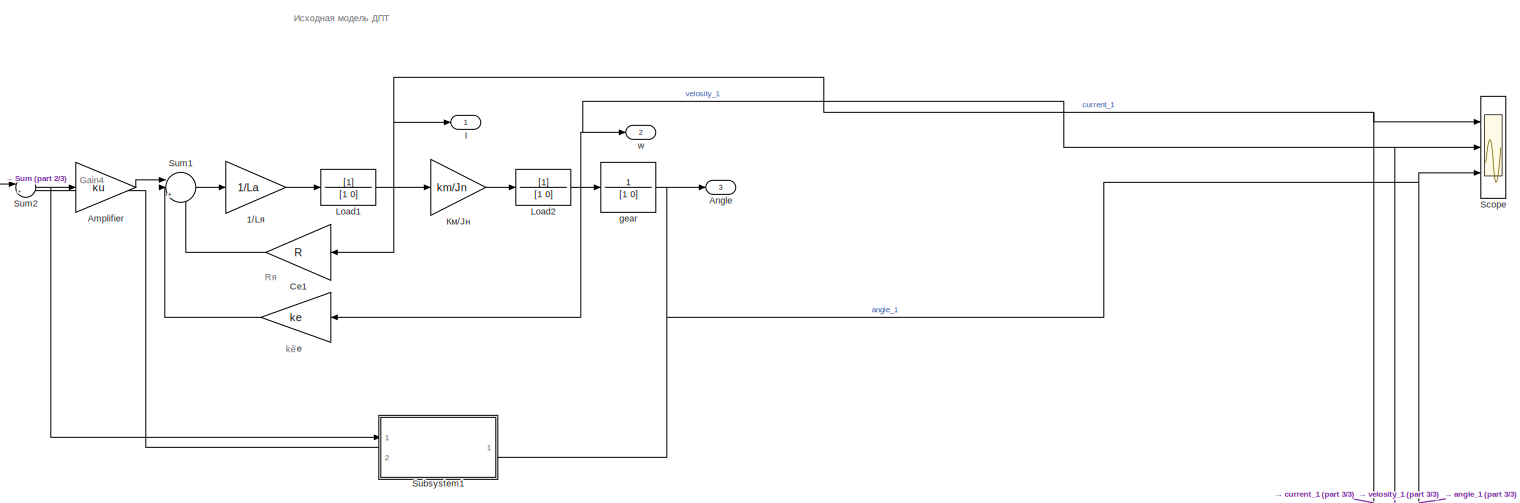
[diagram: root canvas - part 1/3, full width, top band]
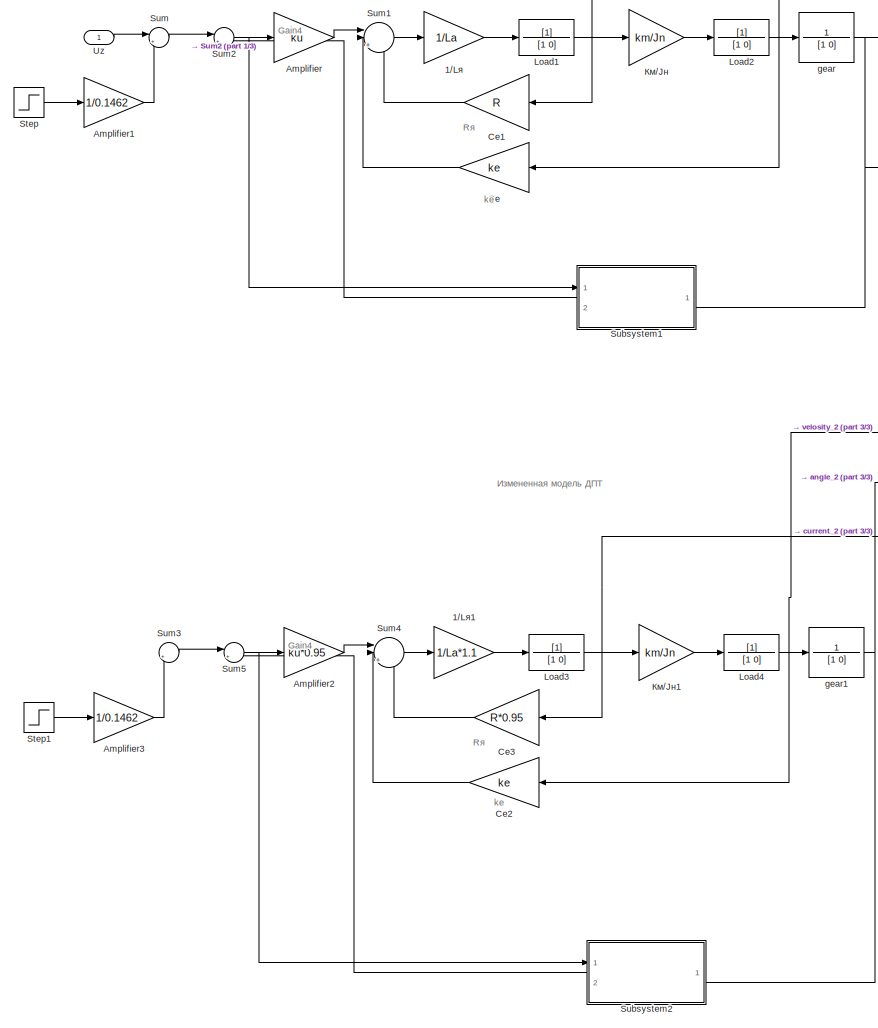
[diagram: root canvas - part 2/3, left side, full height]
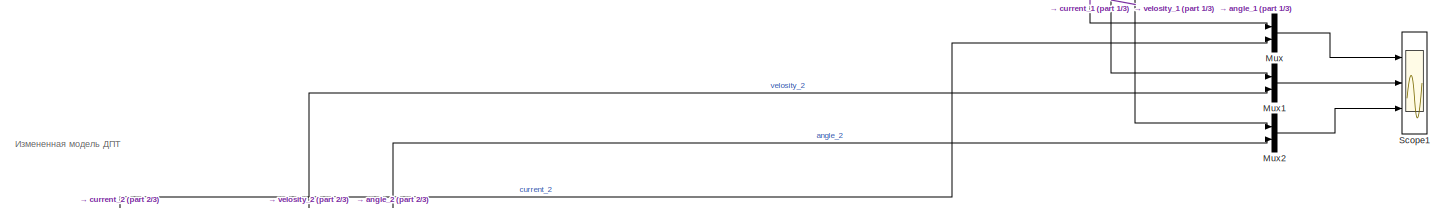
[diagram: root canvas - part 3/3, full width, middle band]
MODEL slx_f2eabdd3d9ce
KIND model
CONFIG AbsTol = auto
CONFIG EnableMultiTasking = off
CONFIG FixedStep = auto
CONFIG MaxStep = auto
CONFIG MinStep = auto
CONFIG RelTol = 1e-3
CONFIG SampleTimeConstraint = Unconstrained
CONFIG SolverName = VariableStepAuto
CONFIG StartTime = 0.0
CONFIG StopTime = 0.2
BLOCK [Gain] 1//Lя
  Gain = 1/La
BLOCK [Gain] 1//Lя1
  Gain = 1/La*1.1
BLOCK [Gain] Amplifier
  Gain = ku
BLOCK [Gain] Amplifier1
  Gain = 1/0.1462
BLOCK [Gain] Amplifier2
  Gain = ku*0.95
BLOCK [Gain] Amplifier3
  Gain = 1/0.1462
BLOCK [Outport] Angle
  Port = 3
BLOCK [Gain] Ce
  Gain = ke
BLOCK [Gain] Ce1
  Gain = R
BLOCK [Gain] Ce2
  Gain = ke
BLOCK [Gain] Ce3
  Gain = R*0.95
BLOCK [Outport] I
BLOCK [TransferFcn] Load1
  Denominator = [1 0]
BLOCK [TransferFcn] Load2
  Denominator = [1 0]
BLOCK [TransferFcn] Load3
  Denominator = [1 0]
BLOCK [TransferFcn] Load4
  Denominator = [1 0]
BLOCK [Mux] Mux
  DisplayOption = bar
  Inputs = 2
  Ports = [2, 1]
BLOCK [Mux] Mux1
  DisplayOption = bar
  Inputs = 2
  Ports = [2, 1]
BLOCK [Mux] Mux2
  DisplayOption = bar
  Inputs = 2
  Ports = [2, 1]
BLOCK [Scope] Scope
  Floating = off
  NumInputPorts = 3
  Ports = [3]
  ScopeSpecificationString = Simulink.scopes.TimeScopeBlockCfg('CurrentConfiguration', extmgr.ConfigurationSet(extmgr.Configuration('Core','General UI',true,'FigureColor',[1 1 1]),extmgr.Configuration('Core','Source UI',true),extmgr.Configuration('Sources','WiredSimulink',true),extmgr.Configuration('Visuals','Time Domain',true,'SerializedDisplays',{struct('MinYLimReal','-4.84733','MaxYLimReal','7.50348','YLabelReal','','MinYL...<+3578ch>
BLOCK [Scope] Scope1
  Floating = off
  NumInputPorts = 3
  Ports = [3]
  ScopeSpecificationString = Simulink.scopes.TimeScopeBlockCfg('CurrentConfiguration', extmgr.ConfigurationSet(extmgr.Configuration('Core','General UI',true,'FigureColor',[1 1 1]),extmgr.Configuration('Core','Source UI',true),extmgr.Configuration('Sources','WiredSimulink',true,'DataLoggingVariableName','ScopeData1'),extmgr.Configuration('Visuals','Time Domain',true,'SerializedDisplays',{struct('MinYLimReal','-4.84733','MaxYLi...<+3654ch>
BLOCK [Step] Step
  SampleTime = 0
  Time = 0
BLOCK [Step] Step1
  SampleTime = 0
  Time = 0
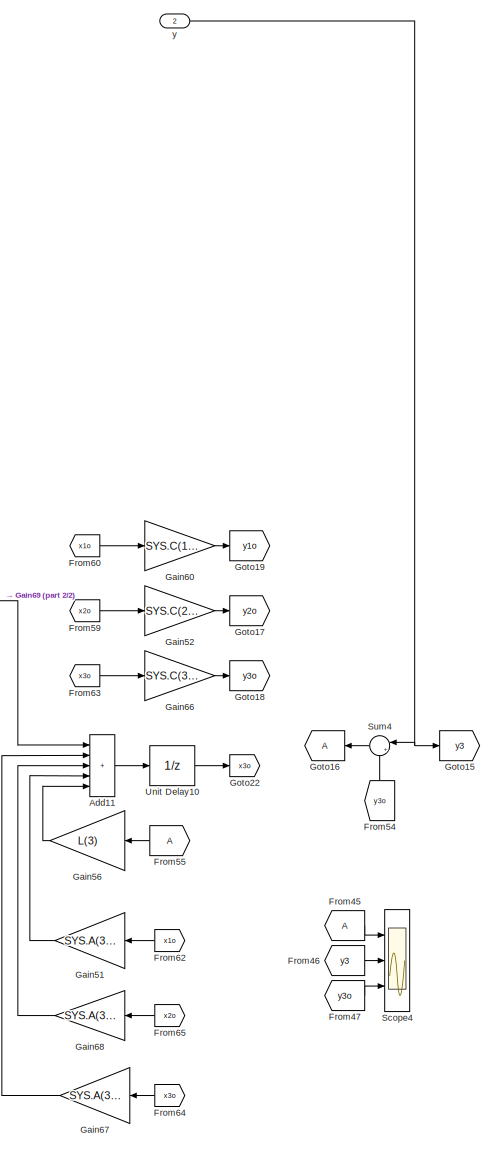
[diagram: Subsystem1 - part 1/2, right side, full height]
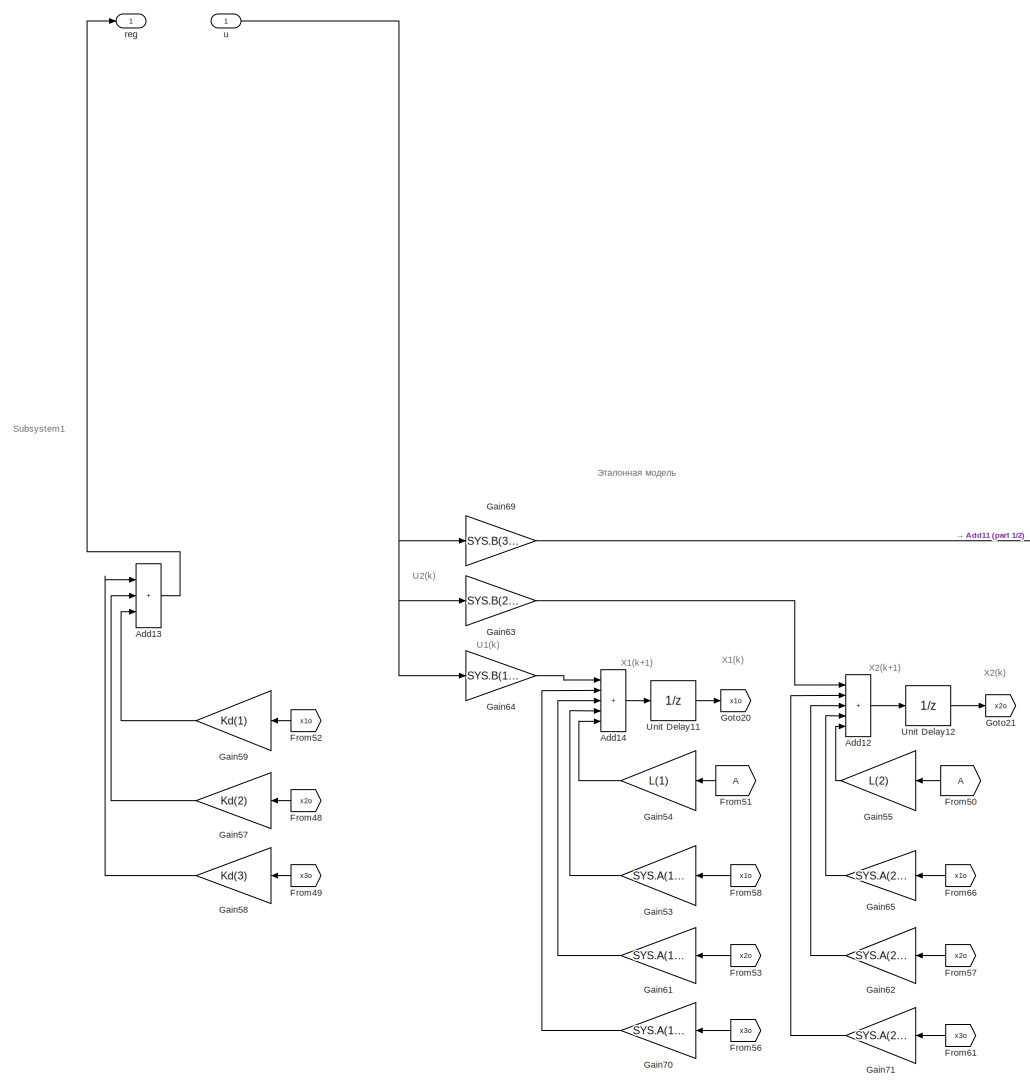
[diagram: Subsystem1 - part 2/2, center side, full height]
BLOCK [SubSystem] Subsystem1
  PortSchema = {"entries":[{"content":{"sides":[{"content":{"connectorIds":["In1","Out1"]},"type":"ConnectorPlacement.EquallySpacedRectSide","uuid":"1ae5a343-437d-4cb9-9822-e2db9fa7010c"},{"content":{"connectorIds":["In2"],"side":"RIGHT"},"type":"ConnectorPlacement.EquallySpacedRectSide","uuid":"a13fd255-885b-49a4-bdfe-42517e7d2bb6"},{"content":{"connectorIds":[],"side":"TOP"},"type":"ConnectorPlacement.EquallyS...<+246ch>
  Ports = [2, 1]
  RequestExecContextInheritance = off
BLOCK [Sum] Subsystem1/Add11
  IconShape = rectangular
  Inputs = +++++
  Ports = [5, 1]
BLOCK [Sum] Subsystem1/Add12
  IconShape = rectangular
  Inputs = +++++
  Ports = [5, 1]
BLOCK [Sum] Subsystem1/Add13
  IconShape = rectangular
  Inputs = +++
  Ports = [3, 1]
BLOCK [Sum] Subsystem1/Add14
  IconShape = rectangular
  Inputs = +++++
  Ports = [5, 1]
BLOCK [From] Subsystem1/From45
  NameLocation = top
BLOCK [From] Subsystem1/From46
  GotoTag = y3
BLOCK [From] Subsystem1/From47
  GotoTag = y3o
BLOCK [From] Subsystem1/From48
  GotoTag = x2o
  NameLocation = top
BLOCK [From] Subsystem1/From49
  GotoTag = x3o
  NameLocation = top
BLOCK [From] Subsystem1/From50
BLOCK [From] Subsystem1/From51
BLOCK [From] Subsystem1/From52
  GotoTag = x1o
  NameLocation = top
BLOCK [From] Subsystem1/From53
  GotoTag = x2o
  NameLocation = top
BLOCK [From] Subsystem1/From54
  GotoTag = y3o
  NameLocation = right
BLOCK [From] Subsystem1/From55
BLOCK [From] Subsystem1/From56
  GotoTag = x3o
  NameLocation = top
BLOCK [From] Subsystem1/From57
  GotoTag = x2o
  NameLocation = top
BLOCK [From] Subsystem1/From58
  GotoTag = x1o
  NameLocation = top
BLOCK [From] Subsystem1/From59
  GotoTag = x2o
BLOCK [From] Subsystem1/From60
  GotoTag = x1o
BLOCK [From] Subsystem1/From61
  GotoTag = x3o
  NameLocation = top
BLOCK [From] Subsystem1/From62
  GotoTag = x1o
  NameLocation = top
BLOCK [From] Subsystem1/From63
  GotoTag = x3o
BLOCK [From] Subsystem1/From64
  GotoTag = x3o
  NameLocation = top
BLOCK [From] Subsystem1/From65
  GotoTag = x2o
  NameLocation = top
BLOCK [From] Subsystem1/From66
  GotoTag = x1o
  NameLocation = top
BLOCK [Gain] Subsystem1/Gain51
  Gain = SYS.A(3,1)
BLOCK [Gain] Subsystem1/Gain52
  Gain = SYS.C(2,2)
BLOCK [Gain] Subsystem1/Gain53
  Gain = SYS.A(1,1)
BLOCK [Gain] Subsystem1/Gain54
  Gain = L(1)
BLOCK [Gain] Subsystem1/Gain55
  Gain = L(2)
BLOCK [Gain] Subsystem1/Gain56
  Gain = L(3)
BLOCK [Gain] Subsystem1/Gain57
  Gain = Kd(2)
BLOCK [Gain] Subsystem1/Gain58
  Gain = Kd(3)
BLOCK [Gain] Subsystem1/Gain59
  Gain = Kd(1)
BLOCK [Gain] Subsystem1/Gain60
  Gain = SYS.C(1,1)
BLOCK [Gain] Subsystem1/Gain61
  Gain = SYS.A(1,2)
BLOCK [Gain] Subsystem1/Gain62
  Gain = SYS.A(2,2)
BLOCK [Gain] Subsystem1/Gain63
  Gain = SYS.B(2,1)
BLOCK [Gain] Subsystem1/Gain64
  Gain = SYS.B(1,1)
BLOCK [Gain] Subsystem1/Gain65
  Gain = SYS.A(2,1)
  NameLocation = top
BLOCK [Gain] Subsystem1/Gain66
  Gain = SYS.C(3,3)
BLOCK [Gain] Subsystem1/Gain67
  Gain = SYS.A(3,3)
BLOCK [Gain] Subsystem1/Gain68
  Gain = SYS.A(3,2)
  NameLocation = top
BLOCK [Gain] Subsystem1/Gain69
  Gain = SYS.B(3,1)
BLOCK [Gain] Subsystem1/Gain70
  Gain = SYS.A(1,3)
BLOCK [Gain] Subsystem1/Gain71
  Gain = SYS.A(2,3)
BLOCK [Goto] Subsystem1/Goto15
  Commented = on
  GotoTag = y3
BLOCK [Goto] Subsystem1/Goto16
  NameLocation = top
BLOCK [Goto] Subsystem1/Goto17
  GotoTag = y2o
BLOCK [Goto] Subsystem1/Goto18
  GotoTag = y3o
BLOCK [Goto] Subsystem1/Goto19
  GotoTag = y1o
BLOCK [Goto] Subsystem1/Goto20
  GotoTag = x1o
BLOCK [Goto] Subsystem1/Goto21
  GotoTag = x2o
BLOCK [Goto] Subsystem1/Goto22
  GotoTag = x3o
BLOCK [Scope] Subsystem1/Scope4
  Floating = off
  NumInputPorts = 3
  Ports = [3]
  ScopeSpecificationString = Simulink.scopes.TimeScopeBlockCfg('CurrentConfiguration', extmgr.ConfigurationSet(extmgr.Configuration('Core','General UI',true,'FigureColor',[1 1 1]),extmgr.Configuration('Core','Source UI',true),extmgr.Configuration('Sources','WiredSimulink',true,'DataLoggingVariableName','ScopeData1'),extmgr.Configuration('Visuals','Time Domain',true,'SerializedDisplays',{struct('MinYLimReal','-1.00000','MaxYLi...<+3650ch>
BLOCK [Sum] Subsystem1/Sum4
  Inputs = |+-
  NameLocation = top
  Ports = [2, 1]
BLOCK [UnitDelay] Subsystem1/Unit Delay10
  HasFrameUpgradeWarning = on
  SampleTime = Ts
BLOCK [UnitDelay] Subsystem1/Unit Delay11
  HasFrameUpgradeWarning = on
  SampleTime = Ts
BLOCK [UnitDelay] Subsystem1/Unit Delay12
  HasFrameUpgradeWarning = on
  SampleTime = Ts
BLOCK [Outport] Subsystem1/reg
BLOCK [Inport] Subsystem1/u
BLOCK [Inport] Subsystem1/y
  Port = 2
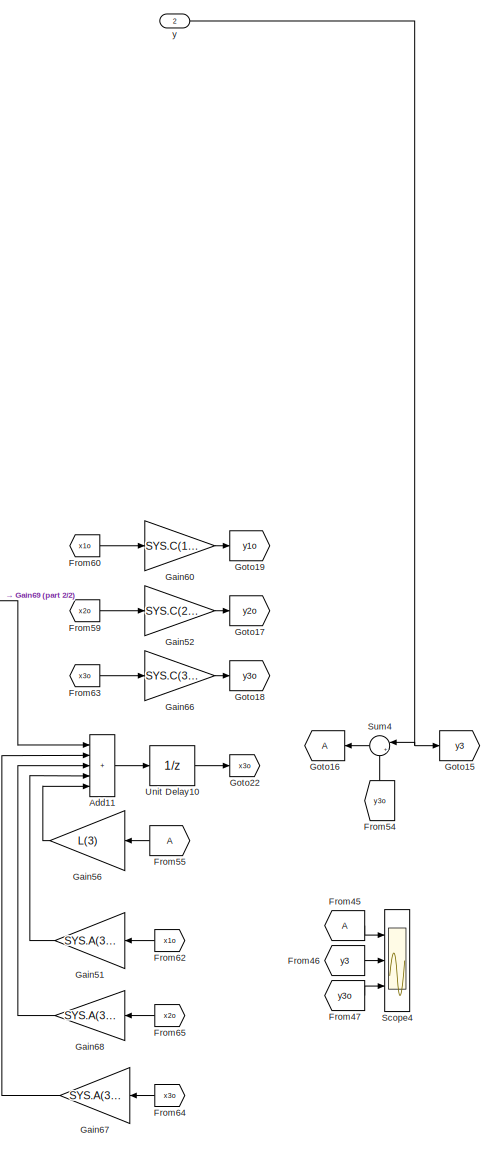
[diagram: Subsystem2 - part 1/2, right side, full height]
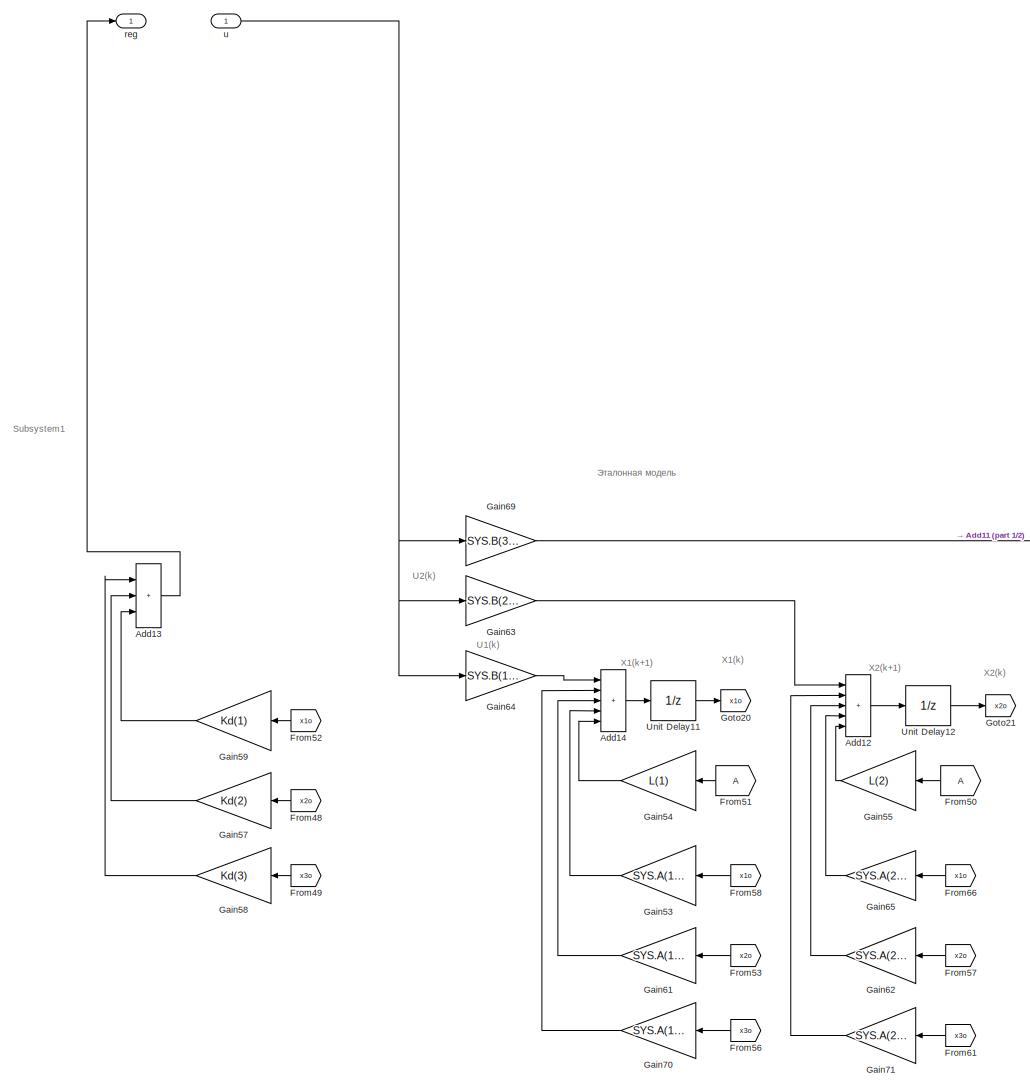
[diagram: Subsystem2 - part 2/2, center side, full height]
BLOCK [SubSystem] Subsystem2
  PortSchema = {"entries":[{"content":{"sides":[{"content":{"connectorIds":["In1","Out1"]},"type":"ConnectorPlacement.EquallySpacedRectSide","uuid":"1ae5a343-437d-4cb9-9822-e2db9fa7010c"},{"content":{"connectorIds":["In2"],"side":"RIGHT"},"type":"ConnectorPlacement.EquallySpacedRectSide","uuid":"a13fd255-885b-49a4-bdfe-42517e7d2bb6"},{"content":{"connectorIds":[],"side":"TOP"},"type":"ConnectorPlacement.EquallyS...<+246ch>
  Ports = [2, 1]
  RequestExecContextInheritance = off
BLOCK [Sum] Subsystem2/Add11
  IconShape = rectangular
  Inputs = +++++
  Ports = [5, 1]
BLOCK [Sum] Subsystem2/Add12
  IconShape = rectangular
  Inputs = +++++
  Ports = [5, 1]
BLOCK [Sum] Subsystem2/Add13
  IconShape = rectangular
  Inputs = +++
  Ports = [3, 1]
BLOCK [Sum] Subsystem2/Add14
  IconShape = rectangular
  Inputs = +++++
  Ports = [5, 1]
BLOCK [From] Subsystem2/From45
  NameLocation = top
BLOCK [From] Subsystem2/From46
  GotoTag = y3
BLOCK [From] Subsystem2/From47
  GotoTag = y3o
BLOCK [From] Subsystem2/From48
  GotoTag = x2o
  NameLocation = top
BLOCK [From] Subsystem2/From49
  GotoTag = x3o
  NameLocation = top
BLOCK [From] Subsystem2/From50
BLOCK [From] Subsystem2/From51
BLOCK [From] Subsystem2/From52
  GotoTag = x1o
  NameLocation = top
BLOCK [From] Subsystem2/From53
  GotoTag = x2o
  NameLocation = top
BLOCK [From] Subsystem2/From54
  GotoTag = y3o
  NameLocation = right
BLOCK [From] Subsystem2/From55
BLOCK [From] Subsystem2/From56
  GotoTag = x3o
  NameLocation = top
BLOCK [From] Subsystem2/From57
  GotoTag = x2o
  NameLocation = top
BLOCK [From] Subsystem2/From58
  GotoTag = x1o
  NameLocation = top
BLOCK [From] Subsystem2/From59
  GotoTag = x2o
BLOCK [From] Subsystem2/From60
  GotoTag = x1o
BLOCK [From] Subsystem2/From61
  GotoTag = x3o
  NameLocation = top
BLOCK [From] Subsystem2/From62
  GotoTag = x1o
  NameLocation = top
BLOCK [From] Subsystem2/From63
  GotoTag = x3o
BLOCK [From] Subsystem2/From64
  GotoTag = x3o
  NameLocation = top
BLOCK [From] Subsystem2/From65
  GotoTag = x2o
  NameLocation = top
BLOCK [From] Subsystem2/From66
  GotoTag = x1o
  NameLocation = top
BLOCK [Gain] Subsystem2/Gain51
  Gain = SYS.A(3,1)
BLOCK [Gain] Subsystem2/Gain52
  Gain = SYS.C(2,2)
BLOCK [Gain] Subsystem2/Gain53
  Gain = SYS.A(1,1)
BLOCK [Gain] Subsystem2/Gain54
  Gain = L(1)
BLOCK [Gain] Subsystem2/Gain55
  Gain = L(2)
BLOCK [Gain] Subsystem2/Gain56
  Gain = L(3)
BLOCK [Gain] Subsystem2/Gain57
  Gain = Kd(2)
BLOCK [Gain] Subsystem2/Gain58
  Gain = Kd(3)
BLOCK [Gain] Subsystem2/Gain59
  Gain = Kd(1)
BLOCK [Gain] Subsystem2/Gain60
  Gain = SYS.C(1,1)
BLOCK [Gain] Subsystem2/Gain61
  Gain = SYS.A(1,2)
BLOCK [Gain] Subsystem2/Gain62
  Gain = SYS.A(2,2)
BLOCK [Gain] Subsystem2/Gain63
  Gain = SYS.B(2,1)
BLOCK [Gain] Subsystem2/Gain64
  Gain = SYS.B(1,1)
BLOCK [Gain] Subsystem2/Gain65
  Gain = SYS.A(2,1)
  NameLocation = top
BLOCK [Gain] Subsystem2/Gain66
  Gain = SYS.C(3,3)
BLOCK [Gain] Subsystem2/Gain67
  Gain = SYS.A(3,3)
BLOCK [Gain] Subsystem2/Gain68
  Gain = SYS.A(3,2)
  NameLocation = top
BLOCK [Gain] Subsystem2/Gain69
  Gain = SYS.B(3,1)
BLOCK [Gain] Subsystem2/Gain70
  Gain = SYS.A(1,3)
BLOCK [Gain] Subsystem2/Gain71
  Gain = SYS.A(2,3)
BLOCK [Goto] Subsystem2/Goto15
  Commented = on
  GotoTag = y3
BLOCK [Goto] Subsystem2/Goto16
  NameLocation = top
BLOCK [Goto] Subsystem2/Goto17
  GotoTag = y2o
BLOCK [Goto] Subsystem2/Goto18
  GotoTag = y3o
BLOCK [Goto] Subsystem2/Goto19
  GotoTag = y1o
BLOCK [Goto] Subsystem2/Goto20
  GotoTag = x1o
BLOCK [Goto] Subsystem2/Goto21
  GotoTag = x2o
BLOCK [Goto] Subsystem2/Goto22
  GotoTag = x3o
BLOCK [Scope] Subsystem2/Scope4
  Floating = off
  NumInputPorts = 3
  Ports = [3]
  ScopeSpecificationString = Simulink.scopes.TimeScopeBlockCfg('CurrentConfiguration', extmgr.ConfigurationSet(extmgr.Configuration('Core','General UI',true,'FigureColor',[1 1 1]),extmgr.Configuration('Core','Source UI',true),extmgr.Configuration('Sources','WiredSimulink',true,'DataLoggingVariableName','ScopeData1'),extmgr.Configuration('Visuals','Time Domain',true,'SerializedDisplays',{struct('MinYLimReal','-1.00000','MaxYLi...<+3650ch>
BLOCK [Sum] Subsystem2/Sum4
  Inputs = |+-
  NameLocation = top
  Ports = [2, 1]
BLOCK [UnitDelay] Subsystem2/Unit Delay10
  HasFrameUpgradeWarning = on
  SampleTime = Ts
BLOCK [UnitDelay] Subsystem2/Unit Delay11
  HasFrameUpgradeWarning = on
  SampleTime = Ts
BLOCK [UnitDelay] Subsystem2/Unit Delay12
  HasFrameUpgradeWarning = on
  SampleTime = Ts
BLOCK [Outport] Subsystem2/reg
BLOCK [Inport] Subsystem2/u
BLOCK [Inport] Subsystem2/y
  Port = 2
BLOCK [Sum] Sum
  Inputs = |++
  Ports = [2, 1]
BLOCK [Sum] Sum1
  Inputs = ||+--
  Ports = [3, 1]
BLOCK [Sum] Sum2
  Inputs = |+-
  Ports = [2, 1]
BLOCK [Sum] Sum3
  Inputs = |++
  Ports = [2, 1]
BLOCK [Sum] Sum4
  Inputs = ||+--
  Ports = [3, 1]
BLOCK [Sum] Sum5
  Inputs = |+-
  Ports = [2, 1]
BLOCK [Inport] Uz
BLOCK [TransferFcn] gear
  Denominator = [1 0]
  Numerator = 1
BLOCK [TransferFcn] gear1
  Denominator = [1 0]
  Numerator = 1
BLOCK [Outport] w
  Port = 2
BLOCK [Gain] Км//Jн
  Gain = km/Jn
BLOCK [Gain] Км//Jн1
  Gain = km/Jn
ANNOTATION (root): Rя
ANNOTATION (root): Измененная модель ДПТ
ANNOTATION (root): Исходная модель ДПТ
ANNOTATION (root): Gain4
ANNOTATION (root): kе
ANNOTATION Subsystem1: Эталонная модель
ANNOTATION Subsystem1: Subsystem1
ANNOTATION Subsystem1: U1(k)
ANNOTATION Subsystem1: U2(k)
ANNOTATION Subsystem1: X1(k)
ANNOTATION Subsystem1: X1(k+1)
ANNOTATION Subsystem1: X2(k)
ANNOTATION Subsystem1: X2(k+1)
ANNOTATION Subsystem2: Эталонная модель
ANNOTATION Subsystem2: Subsystem1
ANNOTATION Subsystem2: U1(k)
ANNOTATION Subsystem2: U2(k)
ANNOTATION Subsystem2: X1(k)
ANNOTATION Subsystem2: X1(k+1)
ANNOTATION Subsystem2: X2(k)
ANNOTATION Subsystem2: X2(k+1)
LINE 1//Lя1:1 -> Load3:1
LINE 1//Lя:1 -> Load1:1
LINE Amplifier1:1 -> Sum:2
LINE Amplifier2:1 -> Sum4:1
LINE Amplifier3:1 -> Sum3:2
LINE Amplifier:1 -> Sum1:1
LINE Ce1:1 -> Sum1:3
LINE Ce2:1 -> Sum4:2
LINE Ce3:1 -> Sum4:3
LINE Ce:1 -> Sum1:2
NET Load1:1 -> Ce1:1, I:1, Mux:1, Scope:1, Км//Jн:1
NET Load2:1 -> Ce:1, Mux1:1, Scope:2, gear:1, w:1
NET Load3:1 -> Ce3:1, Mux:2, Км//Jн1:1
NET Load4:1 -> Ce2:1, Mux1:2, gear1:1
LINE Mux1:1 -> Scope1:2
LINE Mux2:1 -> Scope1:3
LINE Mux:1 -> Scope1:1
LINE Step1:1 -> Amplifier3:1
LINE Step:1 -> Amplifier1:1
LINE Subsystem1/Add11:1 -> Subsystem1/Unit Delay10:1
LINE Subsystem1/Add12:1 -> Subsystem1/Unit Delay12:1
LINE Subsystem1/Add13:1 -> Subsystem1/reg:1
LINE Subsystem1/Add14:1 -> Subsystem1/Unit Delay11:1
LINE Subsystem1/From45:1 -> Subsystem1/Scope4:1
LINE Subsystem1/From46:1 -> Subsystem1/Scope4:2
LINE Subsystem1/From47:1 -> Subsystem1/Scope4:3
LINE Subsystem1/From48:1 -> Subsystem1/Gain57:1
LINE Subsystem1/From49:1 -> Subsystem1/Gain58:1
LINE Subsystem1/From50:1 -> Subsystem1/Gain55:1
LINE Subsystem1/From51:1 -> Subsystem1/Gain54:1
LINE Subsystem1/From52:1 -> Subsystem1/Gain59:1
LINE Subsystem1/From53:1 -> Subsystem1/Gain61:1
LINE Subsystem1/From54:1 -> Subsystem1/Sum4:2
LINE Subsystem1/From55:1 -> Subsystem1/Gain56:1
LINE Subsystem1/From56:1 -> Subsystem1/Gain70:1
LINE Subsystem1/From57:1 -> Subsystem1/Gain62:1
LINE Subsystem1/From58:1 -> Subsystem1/Gain53:1
LINE Subsystem1/From59:1 -> Subsystem1/Gain52:1
LINE Subsystem1/From60:1 -> Subsystem1/Gain60:1
LINE Subsystem1/From61:1 -> Subsystem1/Gain71:1
LINE Subsystem1/From62:1 -> Subsystem1/Gain51:1
LINE Subsystem1/From63:1 -> Subsystem1/Gain66:1
LINE Subsystem1/From64:1 -> Subsystem1/Gain67:1
LINE Subsystem1/From65:1 -> Subsystem1/Gain68:1
LINE Subsystem1/From66:1 -> Subsystem1/Gain65:1
LINE Subsystem1/Gain51:1 -> Subsystem1/Add11:4
LINE Subsystem1/Gain52:1 -> Subsystem1/Goto17:1
LINE Subsystem1/Gain53:1 -> Subsystem1/Add14:4
LINE Subsystem1/Gain54:1 -> Subsystem1/Add14:5
LINE Subsystem1/Gain55:1 -> Subsystem1/Add12:5
LINE Subsystem1/Gain56:1 -> Subsystem1/Add11:5
LINE Subsystem1/Gain57:1 -> Subsystem1/Add13:2
LINE Subsystem1/Gain58:1 -> Subsystem1/Add13:1
LINE Subsystem1/Gain59:1 -> Subsystem1/Add13:3
LINE Subsystem1/Gain60:1 -> Subsystem1/Goto19:1
LINE Subsystem1/Gain61:1 -> Subsystem1/Add14:3
LINE Subsystem1/Gain62:1 -> Subsystem1/Add12:3
LINE Subsystem1/Gain63:1 -> Subsystem1/Add12:1
LINE Subsystem1/Gain64:1 -> Subsystem1/Add14:1
LINE Subsystem1/Gain65:1 -> Subsystem1/Add12:4
LINE Subsystem1/Gain66:1 -> Subsystem1/Goto18:1
LINE Subsystem1/Gain67:1 -> Subsystem1/Add11:2
LINE Subsystem1/Gain68:1 -> Subsystem1/Add11:3
LINE Subsystem1/Gain69:1 -> Subsystem1/Add11:1
LINE Subsystem1/Gain70:1 -> Subsystem1/Add14:2
LINE Subsystem1/Gain71:1 -> Subsystem1/Add12:2
LINE Subsystem1/Sum4:1 -> Subsystem1/Goto16:1
LINE Subsystem1/Unit Delay10:1 -> Subsystem1/Goto22:1
LINE Subsystem1/Unit Delay11:1 -> Subsystem1/Goto20:1
LINE Subsystem1/Unit Delay12:1 -> Subsystem1/Goto21:1
NET Subsystem1/u:1 -> Subsystem1/Gain63:1, Subsystem1/Gain64:1, Subsystem1/Gain69:1
NET Subsystem1/y:1 -> Subsystem1/Goto15:1, Subsystem1/Sum4:1
LINE Subsystem1:1 -> Sum2:2
LINE Subsystem2/Add11:1 -> Subsystem2/Unit Delay10:1
LINE Subsystem2/Add12:1 -> Subsystem2/Unit Delay12:1
LINE Subsystem2/Add13:1 -> Subsystem2/reg:1
LINE Subsystem2/Add14:1 -> Subsystem2/Unit Delay11:1
LINE Subsystem2/From45:1 -> Subsystem2/Scope4:1
LINE Subsystem2/From46:1 -> Subsystem2/Scope4:2
LINE Subsystem2/From47:1 -> Subsystem2/Scope4:3
LINE Subsystem2/From48:1 -> Subsystem2/Gain57:1
LINE Subsystem2/From49:1 -> Subsystem2/Gain58:1
LINE Subsystem2/From50:1 -> Subsystem2/Gain55:1
LINE Subsystem2/From51:1 -> Subsystem2/Gain54:1
LINE Subsystem2/From52:1 -> Subsystem2/Gain59:1
LINE Subsystem2/From53:1 -> Subsystem2/Gain61:1
LINE Subsystem2/From54:1 -> Subsystem2/Sum4:2
LINE Subsystem2/From55:1 -> Subsystem2/Gain56:1
LINE Subsystem2/From56:1 -> Subsystem2/Gain70:1
LINE Subsystem2/From57:1 -> Subsystem2/Gain62:1
LINE Subsystem2/From58:1 -> Subsystem2/Gain53:1
LINE Subsystem2/From59:1 -> Subsystem2/Gain52:1
LINE Subsystem2/From60:1 -> Subsystem2/Gain60:1
LINE Subsystem2/From61:1 -> Subsystem2/Gain71:1
LINE Subsystem2/From62:1 -> Subsystem2/Gain51:1
LINE Subsystem2/From63:1 -> Subsystem2/Gain66:1
LINE Subsystem2/From64:1 -> Subsystem2/Gain67:1
LINE Subsystem2/From65:1 -> Subsystem2/Gain68:1
LINE Subsystem2/From66:1 -> Subsystem2/Gain65:1
LINE Subsystem2/Gain51:1 -> Subsystem2/Add11:4
LINE Subsystem2/Gain52:1 -> Subsystem2/Goto17:1
LINE Subsystem2/Gain53:1 -> Subsystem2/Add14:4
LINE Subsystem2/Gain54:1 -> Subsystem2/Add14:5
LINE Subsystem2/Gain55:1 -> Subsystem2/Add12:5
LINE Subsystem2/Gain56:1 -> Subsystem2/Add11:5
LINE Subsystem2/Gain57:1 -> Subsystem2/Add13:2
LINE Subsystem2/Gain58:1 -> Subsystem2/Add13:1
LINE Subsystem2/Gain59:1 -> Subsystem2/Add13:3
LINE Subsystem2/Gain60:1 -> Subsystem2/Goto19:1
LINE Subsystem2/Gain61:1 -> Subsystem2/Add14:3
LINE Subsystem2/Gain62:1 -> Subsystem2/Add12:3
LINE Subsystem2/Gain63:1 -> Subsystem2/Add12:1
LINE Subsystem2/Gain64:1 -> Subsystem2/Add14:1
LINE Subsystem2/Gain65:1 -> Subsystem2/Add12:4
LINE Subsystem2/Gain66:1 -> Subsystem2/Goto18:1
LINE Subsystem2/Gain67:1 -> Subsystem2/Add11:2
LINE Subsystem2/Gain68:1 -> Subsystem2/Add11:3
LINE Subsystem2/Gain69:1 -> Subsystem2/Add11:1
LINE Subsystem2/Gain70:1 -> Subsystem2/Add14:2
LINE Subsystem2/Gain71:1 -> Subsystem2/Add12:2
LINE Subsystem2/Sum4:1 -> Subsystem2/Goto16:1
LINE Subsystem2/Unit Delay10:1 -> Subsystem2/Goto22:1
LINE Subsystem2/Unit Delay11:1 -> Subsystem2/Goto20:1
LINE Subsystem2/Unit Delay12:1 -> Subsystem2/Goto21:1
NET Subsystem2/u:1 -> Subsystem2/Gain63:1, Subsystem2/Gain64:1, Subsystem2/Gain69:1
NET Subsystem2/y:1 -> Subsystem2/Goto15:1, Subsystem2/Sum4:1
LINE Subsystem2:1 -> Sum5:2
LINE Sum1:1 -> 1//Lя:1
NET Sum2:1 -> Amplifier:1, Subsystem1:1
LINE Sum3:1 -> Sum5:1
LINE Sum4:1 -> 1//Lя1:1
NET Sum5:1 -> Amplifier2:1, Subsystem2:1
LINE Sum:1 -> Sum2:1
LINE Uz:1 -> Sum:1
NET gear1:1 -> Mux2:2, Subsystem2:2
NET gear:1 -> Angle:1, Mux2:1, Scope:3, Subsystem1:2
LINE Км//Jн1:1 -> Load4:1
LINE Км//Jн:1 -> Load2:1
note: NET lines group one-source signal fan-out (src -> all destinations, sorted); 1:1 wires keep LINE
